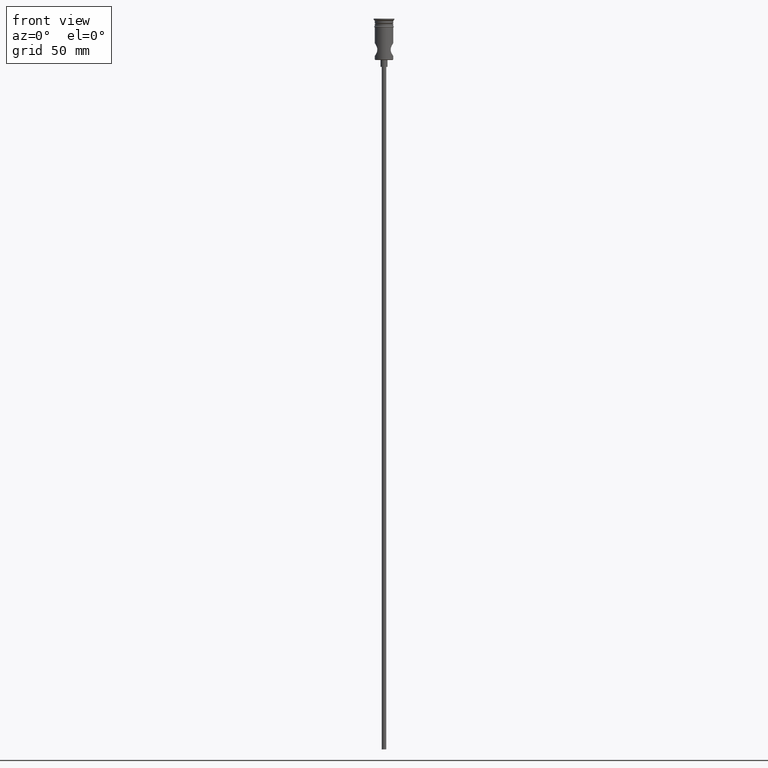
[diagram: clean part render]
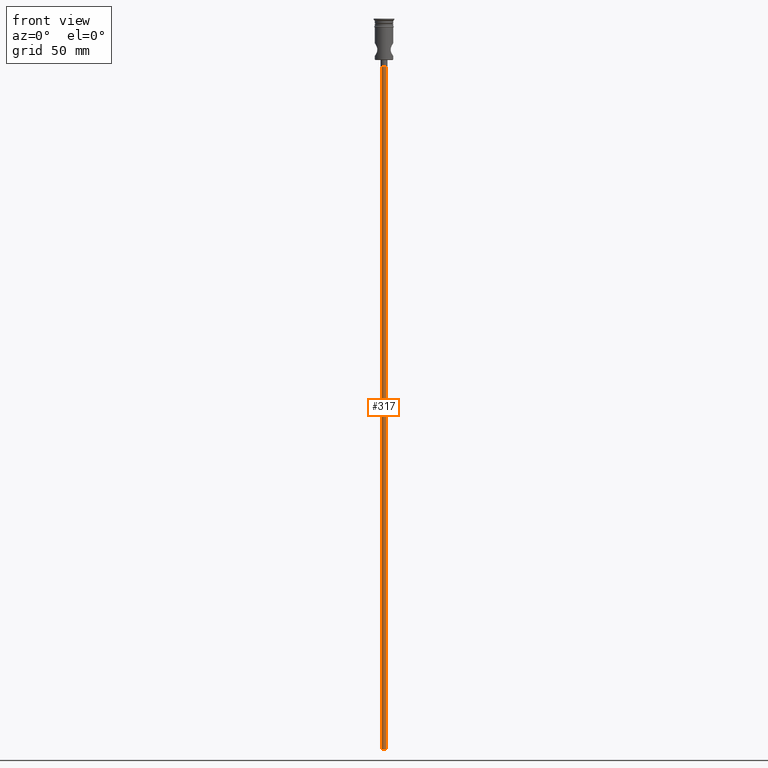
[diagram: same view with one face highlighted and labeled with its STEP entity id]
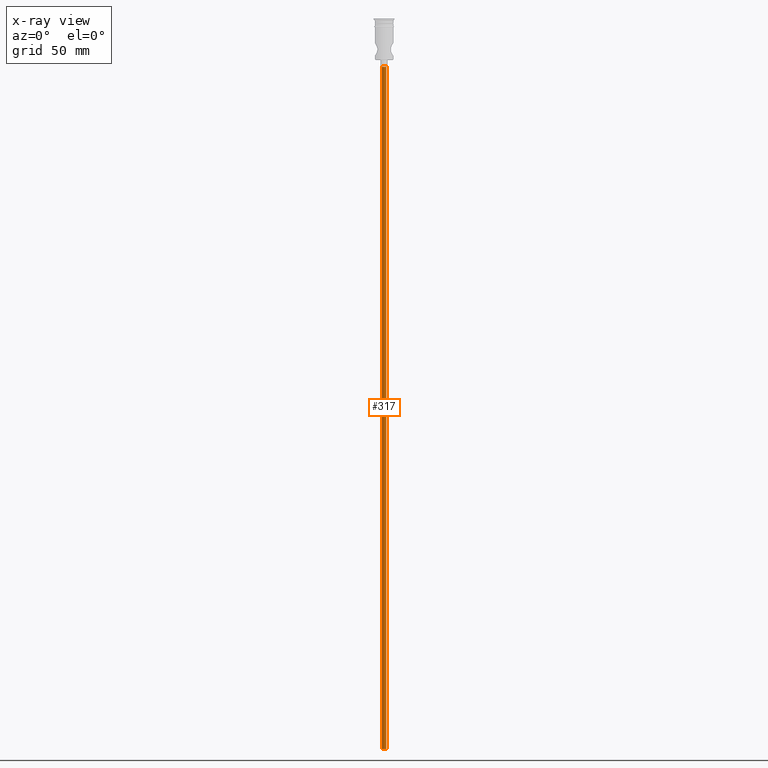
[diagram: x-ray of the same camera — body ghosted, the highlighted face saturated]
A machine part, front view. The second image highlights one B-rep face of the part: STEP entity #317.
The next image is the same camera in x-ray: the body ghosted, the highlighted face saturated — about 0% of this face is hidden behind the body in this view.
In plain terms, the highlighted cylindrical surface (edge-blend (fillet) strip) has radius 1 mm, axis along (-0, -0, 1).
Its self-contained STEP definition (entity closure, byte-faithful):
#73 = CARTESIAN_POINT ( 'NONE',  ( 0.000000000000000000, 0.000000000000000000, -20.99999999999999645 ) ) ;
#119 = EDGE_LOOP ( 'NONE', ( #932, #207, #475, #1220 ) ) ;
#188 = CYLINDRICAL_SURFACE ( 'NONE', #1207, 0.9999999999999997780 ) ;
#207 = ORIENTED_EDGE ( 'NONE', *, *, #1171, .F. ) ;
#233 = DIRECTION ( 'NONE',  ( -0.000000000000000000, -0.000000000000000000, 1.000000000000000000 ) ) ;
#255 = AXIS2_PLACEMENT_3D ( 'NONE', #1094, #405, #300 ) ;
#256 = CARTESIAN_POINT ( 'NONE',  ( 0.9999999999999997780, 0.000000000000000000, -318.0000000000000000 ) ) ;
#280 = VECTOR ( 'NONE', #233, 1000.000000000000000 ) ;
#293 = DIRECTION ( 'NONE',  ( -1.000000000000000000, 0.000000000000000000, 0.000000000000000000 ) ) ;
#300 = DIRECTION ( 'NONE',  ( -1.000000000000000000, 0.000000000000000000, 0.000000000000000000 ) ) ;
#317 = ADVANCED_FACE ( 'NONE', ( #1158 ), #188, .T. ) ;
#331 = CARTESIAN_POINT ( 'NONE',  ( 0.9999999999999997780, 0.000000000000000000, -20.99999999999999645 ) ) ;
#362 = LINE ( 'NONE', #256, #280 ) ;
#405 = DIRECTION ( 'NONE',  ( 0.000000000000000000, 0.000000000000000000, -1.000000000000000000 ) ) ;
#423 = VERTEX_POINT ( 'NONE', #1193 ) ;
#475 = ORIENTED_EDGE ( 'NONE', *, *, #1222, .T. ) ;
#488 = LINE ( 'NONE', #793, #893 ) ;
#499 = DIRECTION ( 'NONE',  ( 0.000000000000000000, 0.000000000000000000, -1.000000000000000000 ) ) ;
#566 = EDGE_CURVE ( 'NONE', #423, #746, #488, .T. ) ;
#581 = CARTESIAN_POINT ( 'NONE',  ( 0.9999999999999997780, 0.000000000000000000, -318.0000000000000000 ) ) ;
#618 = CARTESIAN_POINT ( 'NONE',  ( 0.000000000000000000, 0.000000000000000000, -318.0000000000000000 ) ) ;
#628 = DIRECTION ( 'NONE',  ( 1.000000000000000000, 0.000000000000000000, 0.000000000000000000 ) ) ;
#746 = VERTEX_POINT ( 'NONE', #943 ) ;
#760 = AXIS2_PLACEMENT_3D ( 'NONE', #73, #499, #293 ) ;
#793 = CARTESIAN_POINT ( 'NONE',  ( -0.9999999999999997780, 1.224646799147352961E-16, -318.0000000000000000 ) ) ;
#893 = VECTOR ( 'NONE', #922, 1000.000000000000000 ) ;
#922 = DIRECTION ( 'NONE',  ( -0.000000000000000000, -0.000000000000000000, 1.000000000000000000 ) ) ;
#925 = EDGE_CURVE ( 'NONE', #1025, #746, #1122, .T. ) ;
#932 = ORIENTED_EDGE ( 'NONE', *, *, #566, .F. ) ;
#943 = CARTESIAN_POINT ( 'NONE',  ( -0.9999999999999997780, 1.224646799147352961E-16, -20.99999999999999645 ) ) ;
#1025 = VERTEX_POINT ( 'NONE', #331 ) ;
#1033 = CIRCLE ( 'NONE', #255, 0.9999999999999997780 ) ;
#1094 = CARTESIAN_POINT ( 'NONE',  ( 0.000000000000000000, 0.000000000000000000, -318.0000000000000000 ) ) ;
#1122 = CIRCLE ( 'NONE', #760, 0.9999999999999997780 ) ;
#1158 = FACE_OUTER_BOUND ( 'NONE', #119, .T. ) ;
#1171 = EDGE_CURVE ( 'NONE', #1263, #423, #1033, .T. ) ;
#1193 = CARTESIAN_POINT ( 'NONE',  ( -0.9999999999999997780, 1.224646799147352961E-16, -318.0000000000000000 ) ) ;
#1207 = AXIS2_PLACEMENT_3D ( 'NONE', #618, #1282, #628 ) ;
#1220 = ORIENTED_EDGE ( 'NONE', *, *, #925, .T. ) ;
#1222 = EDGE_CURVE ( 'NONE', #1263, #1025, #362, .T. ) ;
#1263 = VERTEX_POINT ( 'NONE', #581 ) ;
#1282 = DIRECTION ( 'NONE',  ( -0.000000000000000000, -0.000000000000000000, 1.000000000000000000 ) ) ;